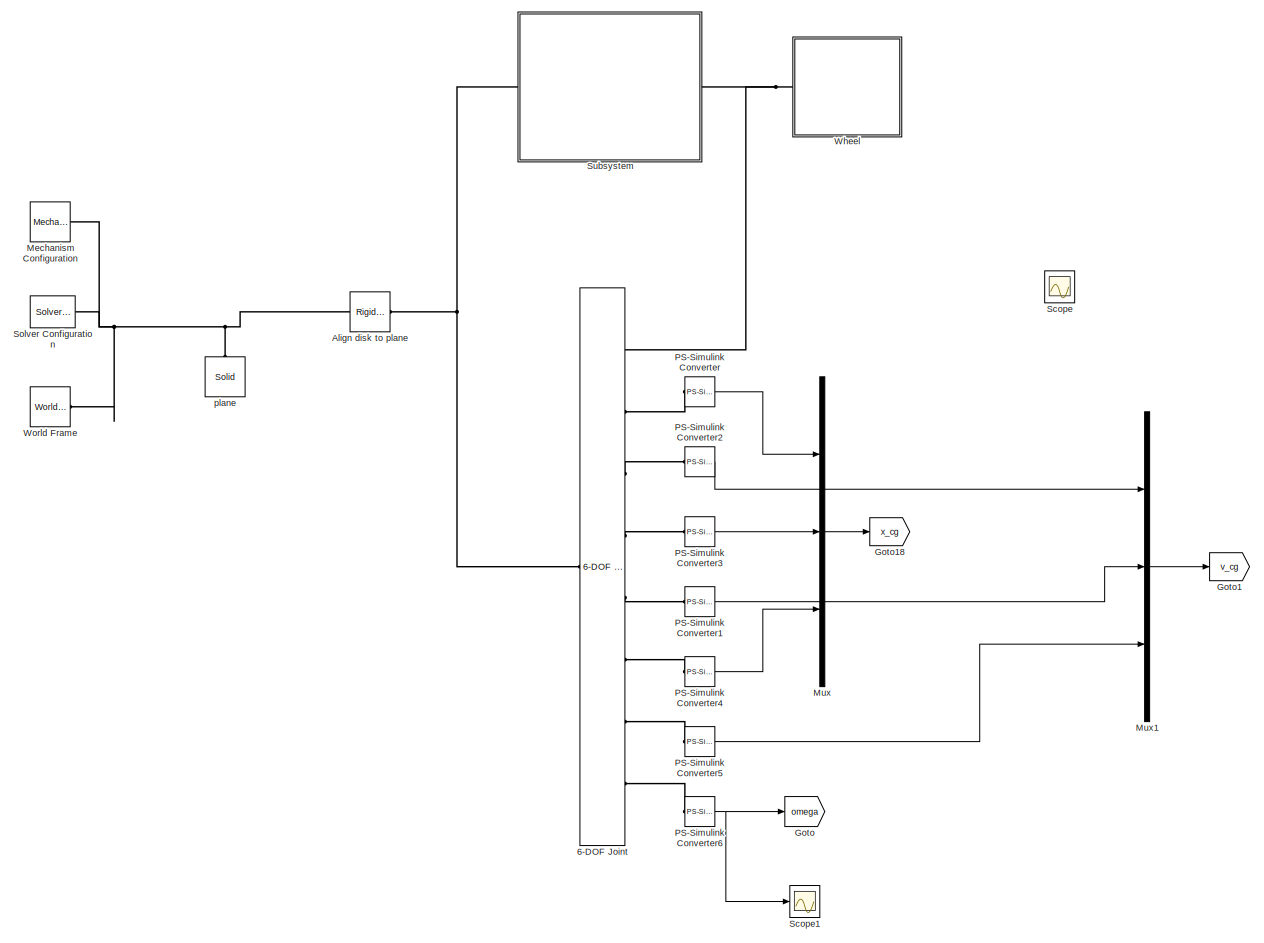
[diagram: root canvas - part 1/1, most of the canvas]
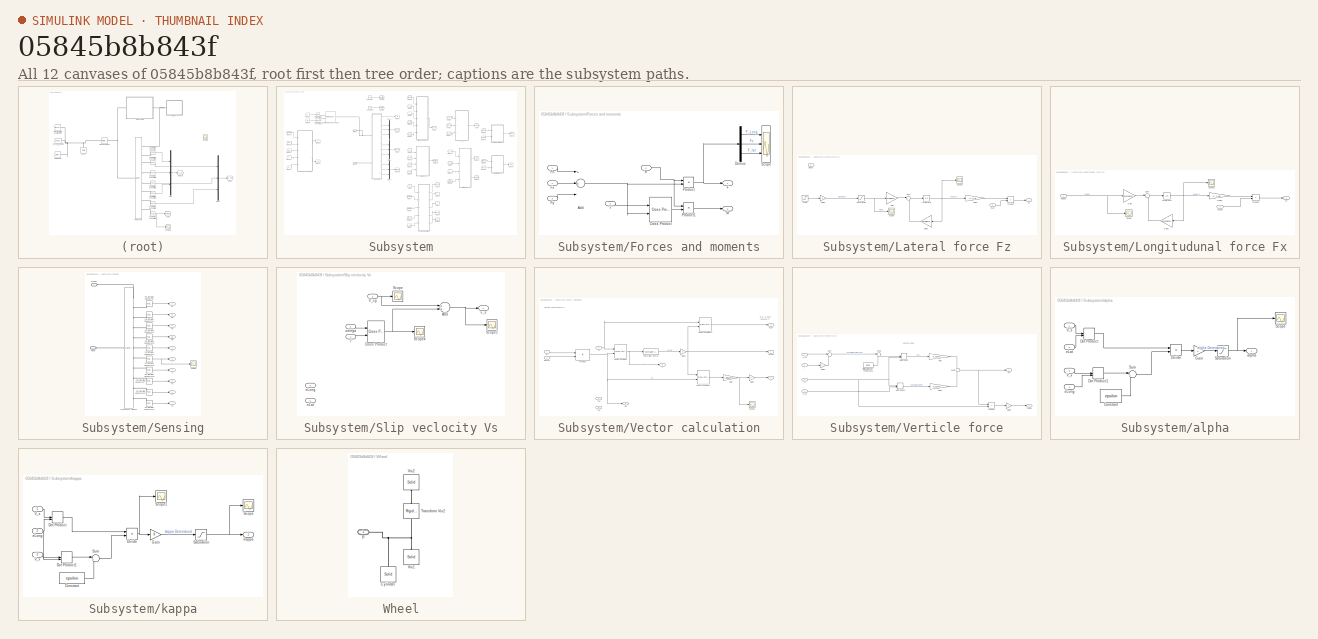
[diagram: thumbnail index - all 12 canvases of the model, root first then tree order]
MODEL slx_05845b8b843f
KIND model
CONFIG AbsTol = auto
CONFIG EnableMultiTasking = off
CONFIG FixedStep = auto
CONFIG MaxStep = auto
CONFIG MinStep = auto
CONFIG RelTol = 1e-3
CONFIG SampleTimeConstraint = Unconstrained
CONFIG Solver = VariableStepAuto
CONFIG SolverName = VariableStepAuto
CONFIG StartTime = 0.0
CONFIG StopTime = 10.0
BLOCK [Reference] 6-DOF Joint  REF=sm_lib/Joints/6-DOF Joint
  Ports = [0, 0, 0, 0, 0, 1, 8]
  SourceBlock = sm_lib/Joints/6-DOF Joint
  SourceProductBaseCode = MS
  SourceProductName = Simscape Multibody
  SourceType = 6-DOF Joint
BLOCK [Reference] Align disk to plane  REF=sm_lib/Frames and
Transforms/Rigid
Transform
  Ports = [0, 0, 0, 0, 0, 1, 1]
  SourceBlock = sm_lib/Frames and\nTransforms/Rigid\nTransform
  SourceProductBaseCode = MS
  SourceProductName = Simscape Multibody
  SourceType = Rigid\nTransform
BLOCK [Goto] Goto
  Commented = on
  GotoTag = omega
  TagVisibility = global
BLOCK [Goto] Goto1
  Commented = on
  GotoTag = v_cg
  TagVisibility = global
BLOCK [Goto] Goto18
  Commented = on
  GotoTag = x_cg
  TagVisibility = global
BLOCK [Reference] Mechanism Configuration  REF=sm_lib/Utilities/Mechanism
Configuration
  Ports = [0, 0, 0, 0, 0, 0, 1]
  SourceBlock = sm_lib/Utilities/Mechanism\nConfiguration
  SourceProductBaseCode = MS
  SourceProductName = Simscape Multibody
  SourceType = Mechanism\nConfiguration
BLOCK [Mux] Mux
  Commented = on
  DisplayOption = bar
  Inputs = 3
  Ports = [3, 1]
BLOCK [Mux] Mux1
  Commented = on
  DisplayOption = bar
  Inputs = 3
  Ports = [3, 1]
BLOCK [Reference] PS-Simulink Converter  REF=nesl_utility/PS-Simulink
Converter
  Ports = [0, 1, 0, 0, 0, 1]
  SourceBlock = nesl_utility/PS-Simulink\nConverter
  SourceProductBaseCode = SS
  SourceProductName = Simscape
  SourceType = PS-Simulink\nConverter
BLOCK [Reference] PS-Simulink Converter1  REF=nesl_utility/PS-Simulink
Converter
  Ports = [0, 1, 0, 0, 0, 1]
  SourceBlock = nesl_utility/PS-Simulink\nConverter
  SourceProductBaseCode = SS
  SourceProductName = Simscape
  SourceType = PS-Simulink\nConverter
BLOCK [Reference] PS-Simulink Converter2  REF=nesl_utility/PS-Simulink
Converter
  Ports = [0, 1, 0, 0, 0, 1]
  SourceBlock = nesl_utility/PS-Simulink\nConverter
  SourceProductBaseCode = SS
  SourceProductName = Simscape
  SourceType = PS-Simulink\nConverter
BLOCK [Reference] PS-Simulink Converter3  REF=nesl_utility/PS-Simulink
Converter
  Ports = [0, 1, 0, 0, 0, 1]
  SourceBlock = nesl_utility/PS-Simulink\nConverter
  SourceProductBaseCode = SS
  SourceProductName = Simscape
  SourceType = PS-Simulink\nConverter
BLOCK [Reference] PS-Simulink Converter4  REF=nesl_utility/PS-Simulink
Converter
  Ports = [0, 1, 0, 0, 0, 1]
  SourceBlock = nesl_utility/PS-Simulink\nConverter
  SourceProductBaseCode = SS
  SourceProductName = Simscape
  SourceType = PS-Simulink\nConverter
BLOCK [Reference] PS-Simulink Converter5  REF=nesl_utility/PS-Simulink
Converter
  Ports = [0, 1, 0, 0, 0, 1]
  SourceBlock = nesl_utility/PS-Simulink\nConverter
  SourceProductBaseCode = SS
  SourceProductName = Simscape
  SourceType = PS-Simulink\nConverter
BLOCK [Reference] PS-Simulink Converter6  REF=nesl_utility/PS-Simulink
Converter
  Ports = [0, 1, 0, 0, 0, 1]
  SourceBlock = nesl_utility/PS-Simulink\nConverter
  SourceProductBaseCode = SS
  SourceProductName = Simscape
  SourceType = PS-Simulink\nConverter
BLOCK [Scope] Scope
  Commented = on
  NumInputPorts = 1
  Ports = [1]
  ScopeSpecificationString = Simulink.scopes.TimeScopeBlockCfg('CurrentConfiguration', extmgr.ConfigurationSet(extmgr.Configuration('Core','General UI',true),extmgr.Configuration('Core','Source UI',true),extmgr.Configuration('Sources','WiredSimulink',true,'DataLoggingVariableName','ScopeData8'),extmgr.Configuration('Visuals','Time Domain',true,'SerializedDisplays',{struct('MinYLimReal','206.51836','MaxYLimReal','358.2605','YL...<+1422ch>
BLOCK [Scope] Scope1
  NumInputPorts = 1
  Ports = [1]
  ScopeSpecificationString = Simulink.scopes.TimeScopeBlockCfg('CurrentConfiguration', extmgr.ConfigurationSet(extmgr.Configuration('Core','General UI',true),extmgr.Configuration('Core','Source UI',true),extmgr.Configuration('Sources','WiredSimulink',true,'DataLoggingVariableName','ScopeData9'),extmgr.Configuration('Visuals','Time Domain',true,'SerializedDisplays',{struct('MinYLimReal','-21.02323','MaxYLimReal','22.5424','YLa...<+1494ch>
BLOCK [Reference] Solver Configuration  REF=nesl_utility/Solver
Configuration
  Ports = [0, 0, 0, 0, 0, 0, 1]
  SourceBlock = nesl_utility/Solver\nConfiguration
  SourceProductBaseCode = SS
  SourceProductName = Simscape
  SourceType = Solver\nConfiguration
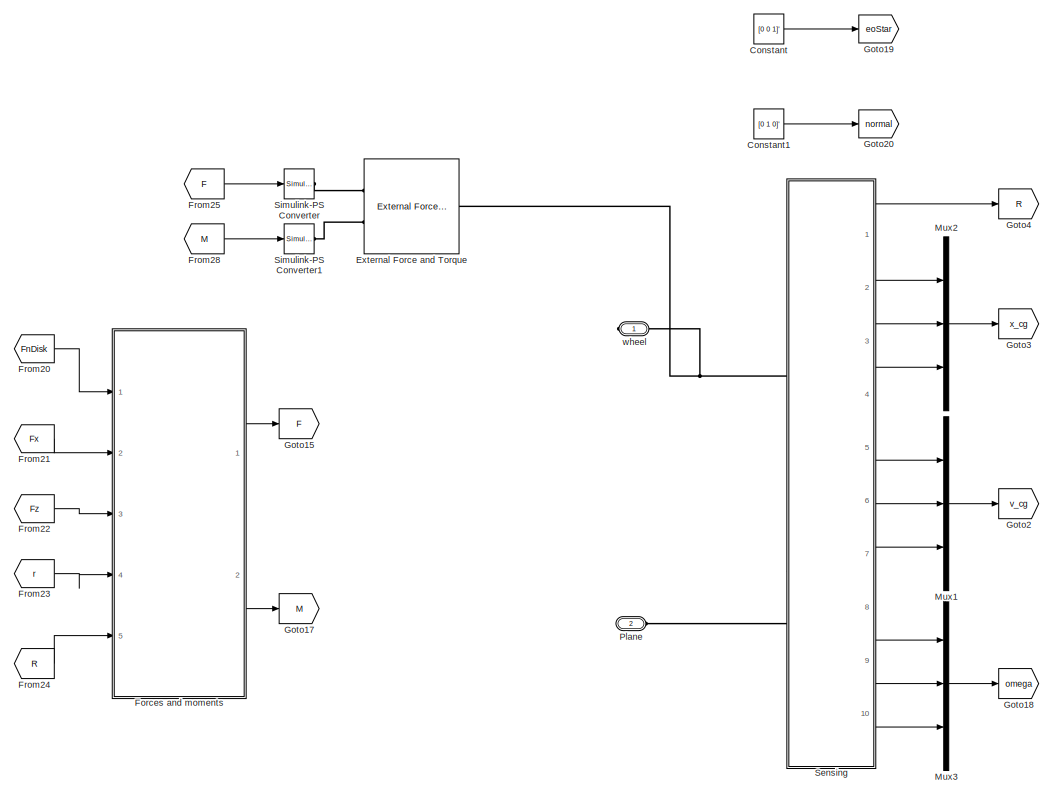
[diagram: Subsystem - part 1/3, top left region]
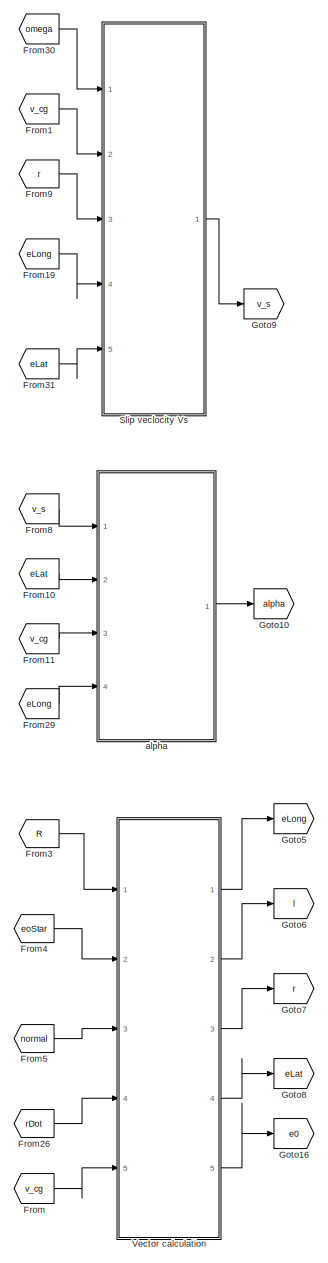
[diagram: Subsystem - part 2/3, center side, full height]
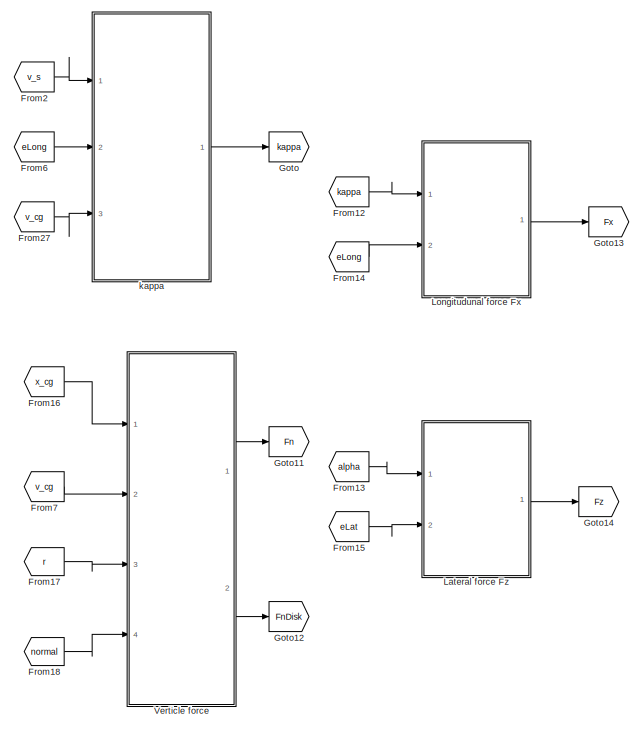
[diagram: Subsystem - part 3/3, middle right region]
BLOCK [SubSystem] Subsystem
  Ports = [0, 0, 0, 0, 0, 1, 1]
  RequestExecContextInheritance = off
  Variant = off
BLOCK [Constant] Subsystem/Constant
  Value = [0 0 1]'
BLOCK [Constant] Subsystem/Constant1
  Value = [0 1 0]'
BLOCK [Reference] Subsystem/External Force and Torque  REF=sm_lib/Forces and
Torques/External Force
and Torque
  Ports = [0, 0, 0, 0, 0, 2, 1]
  SourceBlock = sm_lib/Forces and\nTorques/External Force\nand Torque
  SourceProductBaseCode = MS
  SourceProductName = Simscape Multibody
  SourceType = External Force\nand Torque
BLOCK [SubSystem] Subsystem/Forces and moments
  Ports = [5, 2]
  RequestExecContextInheritance = off
  Variant = off
BLOCK [Sum] Subsystem/Forces and moments/Add
  InputSameDT = off
  Inputs = 3
  OutDataTypeStr = Inherit: Inherit via internal rule
  Ports = [3, 1]
  SaturateOnIntegerOverflow = off
BLOCK [Reference] Subsystem/Forces and moments/Cross Product  REF=vrlib/Utilities/Cross Product
  Ports = [2, 1]
  SourceBlock = vrlib/Utilities/Cross Product
  SourceProductBaseCode = VR
  SourceProductName = Simulink 3D Animation
  SourceType = Cross Product
BLOCK [Demux] Subsystem/Forces and moments/Demux
  DisplayOption = bar
  Outputs = 3
  Ports = [1, 3]
BLOCK [Outport] Subsystem/Forces and moments/F
  IconDisplay = Port number
BLOCK [Inport] Subsystem/Forces and moments/Fn
  IconDisplay = Port number
BLOCK [Inport] Subsystem/Forces and moments/Fx
  IconDisplay = Port number
  Port = 2
BLOCK [Inport] Subsystem/Forces and moments/Fy
  IconDisplay = Port number
  Port = 3
BLOCK [Outport] Subsystem/Forces and moments/M
  IconDisplay = Port number
  Port = 2
BLOCK [Product] Subsystem/Forces and moments/Product
  InputSameDT = off
  Inputs = /*
  Multiplication = Matrix(*)
  OutDataTypeStr = Inherit: Inherit via internal rule
  Ports = [2, 1]
  RndMeth = Floor
  SaturateOnIntegerOverflow = off
BLOCK [Product] Subsystem/Forces and moments/Product1
  InputSameDT = off
  Inputs = /*
  Multiplication = Matrix(*)
  OutDataTypeStr = Inherit: Inherit via internal rule
  Ports = [2, 1]
  RndMeth = Floor
  SaturateOnIntegerOverflow = off
BLOCK [Inport] Subsystem/Forces and moments/R
  IconDisplay = Port number
  Port = 5
BLOCK [Scope] Subsystem/Forces and moments/Scope
  NumInputPorts = 3
  Ports = [3]
  ScopeSpecificationString = Simulink.scopes.TimeScopeBlockCfg('CurrentConfiguration', extmgr.ConfigurationSet(extmgr.Configuration('Core','General UI',true),extmgr.Configuration('Core','Source UI',true),extmgr.Configuration('Sources','WiredSimulink',true,'DataLoggingVariableName','ScopeData1'),extmgr.Configuration('Visuals','Time Domain',true,'SerializedDisplays',{struct('MinYLimReal','-76.91031','MaxYLimReal','467.50793','Y...<+2761ch>
BLOCK [Inport] Subsystem/Forces and moments/r
  IconDisplay = Port number
  Port = 4
BLOCK [From] Subsystem/From
  GotoTag = v_cg
BLOCK [From] Subsystem/From1
  GotoTag = v_cg
BLOCK [From] Subsystem/From10
  GotoTag = eLat
BLOCK [From] Subsystem/From11
  GotoTag = v_cg
BLOCK [From] Subsystem/From12
  GotoTag = kappa
BLOCK [From] Subsystem/From13
  GotoTag = alpha
BLOCK [From] Subsystem/From14
  GotoTag = eLong
BLOCK [From] Subsystem/From15
  GotoTag = eLat
BLOCK [From] Subsystem/From16
  GotoTag = x_cg
BLOCK [From] Subsystem/From17
  GotoTag = r
BLOCK [From] Subsystem/From18
  GotoTag = normal
BLOCK [From] Subsystem/From19
  GotoTag = eLong
BLOCK [From] Subsystem/From2
  GotoTag = v_s
BLOCK [From] Subsystem/From20
  GotoTag = FnDisk
BLOCK [From] Subsystem/From21
  GotoTag = Fx
BLOCK [From] Subsystem/From22
  GotoTag = Fz
BLOCK [From] Subsystem/From23
  GotoTag = r
BLOCK [From] Subsystem/From24
  GotoTag = R
BLOCK [From] Subsystem/From25
  GotoTag = F
BLOCK [From] Subsystem/From26
  GotoTag = rDot
BLOCK [From] Subsystem/From27
  GotoTag = v_cg
BLOCK [From] Subsystem/From28
  GotoTag = M
BLOCK [From] Subsystem/From29
  GotoTag = eLong
BLOCK [From] Subsystem/From3
  GotoTag = R
BLOCK [From] Subsystem/From30
  GotoTag = omega
BLOCK [From] Subsystem/From31
  GotoTag = eLat
BLOCK [From] Subsystem/From4
  GotoTag = eoStar
BLOCK [From] Subsystem/From5
  GotoTag = normal
BLOCK [From] Subsystem/From6
  GotoTag = eLong
BLOCK [From] Subsystem/From7
  GotoTag = v_cg
BLOCK [From] Subsystem/From8
  GotoTag = v_s
BLOCK [From] Subsystem/From9
  GotoTag = r
BLOCK [Goto] Subsystem/Goto
  GotoTag = kappa
BLOCK [Goto] Subsystem/Goto10
  GotoTag = alpha
BLOCK [Goto] Subsystem/Goto11
  GotoTag = Fn
BLOCK [Goto] Subsystem/Goto12
  GotoTag = FnDisk
BLOCK [Goto] Subsystem/Goto13
  GotoTag = Fx
BLOCK [Goto] Subsystem/Goto14
  GotoTag = Fz
BLOCK [Goto] Subsystem/Goto15
  GotoTag = F
BLOCK [Goto] Subsystem/Goto16
  GotoTag = e0
BLOCK [Goto] Subsystem/Goto17
  GotoTag = M
BLOCK [Goto] Subsystem/Goto18
  GotoTag = omega
BLOCK [Goto] Subsystem/Goto19
  GotoTag = eoStar
BLOCK [Goto] Subsystem/Goto2
  GotoTag = v_cg
BLOCK [Goto] Subsystem/Goto20
  GotoTag = normal
BLOCK [Goto] Subsystem/Goto3
  GotoTag = x_cg
BLOCK [Goto] Subsystem/Goto4
  GotoTag = R
BLOCK [Goto] Subsystem/Goto5
  GotoTag = eLong
BLOCK [Goto] Subsystem/Goto6
  GotoTag = l
BLOCK [Goto] Subsystem/Goto7
  GotoTag = r
BLOCK [Goto] Subsystem/Goto8
  GotoTag = eLat
BLOCK [Goto] Subsystem/Goto9
  GotoTag = v_s
BLOCK [SubSystem] Subsystem/Lateral force Fz
  Ports = [2, 1]
  RequestExecContextInheritance = off
  Variant = off
BLOCK [Outport] Subsystem/Lateral force Fz/Fz
  IconDisplay = Port number
BLOCK [Gain] Subsystem/Lateral force Fz/Gain
  Gain = v0/sigma
  OutDataTypeStr = Inherit: Inherit via internal rule
  ParamDataTypeStr = Inherit: Inherit via internal rule
  SaturateOnIntegerOverflow = off
BLOCK [Gain] Subsystem/Lateral force Fz/Gain1
  Gain = v0/sigma
  OutDataTypeStr = Inherit: Inherit via internal rule
  ParamDataTypeStr = Inherit: Inherit via internal rule
  SaturateOnIntegerOverflow = off
BLOCK [Gain] Subsystem/Lateral force Fz/Gain2
  Gain = -C_F_alpha
  OutDataTypeStr = Inherit: Inherit via internal rule
  ParamDataTypeStr = Inherit: Inherit via internal rule
  SaturateOnIntegerOverflow = off
BLOCK [Gain] Subsystem/Lateral force Fz/Gain3
  Gain = 0
  OutDataTypeStr = Inherit: Inherit via internal rule
  ParamDataTypeStr = Inherit: Inherit via internal rule
  SaturateOnIntegerOverflow = off
BLOCK [Integrator] Subsystem/Lateral force Fz/Integrator
  Ports = [1, 1]
BLOCK [Product] Subsystem/Lateral force Fz/Product
  InputSameDT = off
  OutDataTypeStr = Inherit: Inherit via internal rule
  Ports = [2, 1]
  RndMeth = Floor
  SaturateOnIntegerOverflow = off
BLOCK [Saturate] Subsystem/Lateral force Fz/Saturation
  InputPortMap = u0
  LowerLimit = -1e0
  Ports = [1, 1]
  UpperLimit = 0
BLOCK [Scope] Subsystem/Lateral force Fz/Scope
  NumInputPorts = 1
  Ports = [1]
  ScopeSpecificationString = Simulink.scopes.TimeScopeBlockCfg('CurrentConfiguration', extmgr.ConfigurationSet(extmgr.Configuration('Core','General UI',true),extmgr.Configuration('Core','Source UI',true),extmgr.Configuration('Sources','WiredSimulink',true,'DataLoggingVariableName','ScopeData5'),extmgr.Configuration('Visuals','Time Domain',true,'SerializedDisplays',{struct('MinYLimReal','-1.00000','MaxYLimReal','1.00000','YLab...<+1420ch>
BLOCK [Scope] Subsystem/Lateral force Fz/Scope1
  NumInputPorts = 1
  Ports = [1]
  ScopeSpecificationString = Simulink.scopes.TimeScopeBlockCfg('CurrentConfiguration', extmgr.ConfigurationSet(extmgr.Configuration('Core','General UI',true),extmgr.Configuration('Core','Source UI',true),extmgr.Configuration('Sources','WiredSimulink',true,'DataLoggingVariableName','ScopeData7'),extmgr.Configuration('Visuals','Time Domain',true,'SerializedDisplays',{struct('MinYLimReal','-1.00000','MaxYLimReal','1.00000','YLab...<+1395ch>
BLOCK [Step] Subsystem/Lateral force Fz/Step
  SampleTime = 0
  Time = 0
BLOCK [Sum] Subsystem/Lateral force Fz/Sum
  IconShape = round
  InputSameDT = off
  Inputs = |+-
  OutDataTypeStr = Inherit: Inherit via internal rule
  Ports = [2, 1]
  SaturateOnIntegerOverflow = off
BLOCK [Inport] Subsystem/Lateral force Fz/alpha
  IconDisplay = Port number
BLOCK [Inport] Subsystem/Lateral force Fz/eLat
  IconDisplay = Port number
  Port = 2
BLOCK [SubSystem] Subsystem/Longitudunal force Fx
  Ports = [2, 1]
  RequestExecContextInheritance = off
  Variant = off
BLOCK [Outport] Subsystem/Longitudunal force Fx/Fx
  IconDisplay = Port number
BLOCK [Gain] Subsystem/Longitudunal force Fx/Gain
  Gain = v0/sigma
  OutDataTypeStr = Inherit: Inherit via internal rule
  ParamDataTypeStr = Inherit: Inherit via internal rule
  SaturateOnIntegerOverflow = off
BLOCK [Gain] Subsystem/Longitudunal force Fx/Gain1
  Gain = v0/sigma
  OutDataTypeStr = Inherit: Inherit via internal rule
  ParamDataTypeStr = Inherit: Inherit via internal rule
  SaturateOnIntegerOverflow = off
BLOCK [Gain] Subsystem/Longitudunal force Fx/Gain2
  Gain = -C_F_kappa
  OutDataTypeStr = Inherit: Inherit via internal rule
  ParamDataTypeStr = Inherit: Inherit via internal rule
  SaturateOnIntegerOverflow = off
BLOCK [Integrator] Subsystem/Longitudunal force Fx/Integrator
  Ports = [1, 1]
BLOCK [Product] Subsystem/Longitudunal force Fx/Product
  InputSameDT = off
  OutDataTypeStr = Inherit: Inherit via internal rule
  Ports = [2, 1]
  RndMeth = Floor
  SaturateOnIntegerOverflow = off
BLOCK [Scope] Subsystem/Longitudunal force Fx/Scope
  NumInputPorts = 1
  Ports = [1]
  ScopeSpecificationString = Simulink.scopes.TimeScopeBlockCfg('CurrentConfiguration', extmgr.ConfigurationSet(extmgr.Configuration('Core','General UI',true),extmgr.Configuration('Core','Source UI',true),extmgr.Configuration('Sources','WiredSimulink',true,'DataLoggingVariableName','ScopeData3'),extmgr.Configuration('Visuals','Time Domain',true,'SerializedDisplays',{struct('MinYLimReal','-1.125','MaxYLimReal','0.125','YLabelRe...<+1478ch>
BLOCK [Scope] Subsystem/Longitudunal force Fx/Scope1
  NumInputPorts = 1
  Ports = [1]
  ScopeSpecificationString = Simulink.scopes.TimeScopeBlockCfg('CurrentConfiguration', extmgr.ConfigurationSet(extmgr.Configuration('Core','General UI',true),extmgr.Configuration('Core','Source UI',true),extmgr.Configuration('Sources','WiredSimulink',true,'DataLoggingVariableName','ScopeData6'),extmgr.Configuration('Visuals','Time Domain',true,'SerializedDisplays',{struct('MinYLimReal','-0.47991','MaxYLimReal','0.05332','YLab...<+1493ch>
BLOCK [Sum] Subsystem/Longitudunal force Fx/Sum
  IconShape = round
  InputSameDT = off
  Inputs = |+-
  OutDataTypeStr = Inherit: Inherit via internal rule
  Ports = [2, 1]
  SaturateOnIntegerOverflow = off
BLOCK [Inport] Subsystem/Longitudunal force Fx/eLong
  IconDisplay = Port number
  Port = 2
BLOCK [Inport] Subsystem/Longitudunal force Fx/kappa
  IconDisplay = Port number
BLOCK [Mux] Subsystem/Mux1
  DisplayOption = bar
  Inputs = 3
  Ports = [3, 1]
BLOCK [Mux] Subsystem/Mux2
  DisplayOption = bar
  Inputs = 3
  Ports = [3, 1]
BLOCK [Mux] Subsystem/Mux3
  DisplayOption = bar
  Inputs = 3
  Ports = [3, 1]
BLOCK [PMIOPort] Subsystem/Plane
  Port = 2
  Side = Left
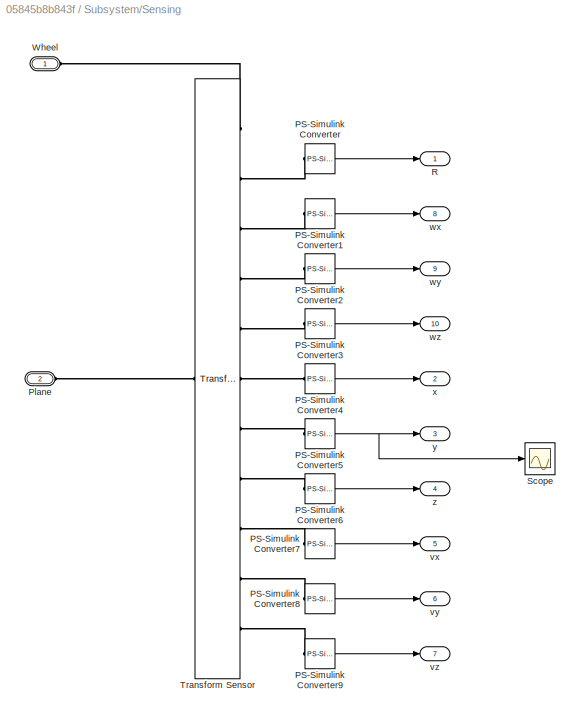
BLOCK [SubSystem] Subsystem/Sensing
  Ports = [0, 10, 0, 0, 0, 2]
  RequestExecContextInheritance = off
  Variant = off
BLOCK [Reference] Subsystem/Sensing/PS-Simulink Converter  REF=nesl_utility/PS-Simulink
Converter
  Ports = [0, 1, 0, 0, 0, 1]
  SourceBlock = nesl_utility/PS-Simulink\nConverter
  SourceProductBaseCode = SS
  SourceProductName = Simscape
  SourceType = PS-Simulink\nConverter
BLOCK [Reference] Subsystem/Sensing/PS-Simulink Converter1  REF=nesl_utility/PS-Simulink
Converter
  Ports = [0, 1, 0, 0, 0, 1]
  SourceBlock = nesl_utility/PS-Simulink\nConverter
  SourceProductBaseCode = SS
  SourceProductName = Simscape
  SourceType = PS-Simulink\nConverter
BLOCK [Reference] Subsystem/Sensing/PS-Simulink Converter2  REF=nesl_utility/PS-Simulink
Converter
  Ports = [0, 1, 0, 0, 0, 1]
  SourceBlock = nesl_utility/PS-Simulink\nConverter
  SourceProductBaseCode = SS
  SourceProductName = Simscape
  SourceType = PS-Simulink\nConverter
BLOCK [Reference] Subsystem/Sensing/PS-Simulink Converter3  REF=nesl_utility/PS-Simulink
Converter
  Ports = [0, 1, 0, 0, 0, 1]
  SourceBlock = nesl_utility/PS-Simulink\nConverter
  SourceProductBaseCode = SS
  SourceProductName = Simscape
  SourceType = PS-Simulink\nConverter
BLOCK [Reference] Subsystem/Sensing/PS-Simulink Converter4  REF=nesl_utility/PS-Simulink
Converter
  Ports = [0, 1, 0, 0, 0, 1]
  SourceBlock = nesl_utility/PS-Simulink\nConverter
  SourceProductBaseCode = SS
  SourceProductName = Simscape
  SourceType = PS-Simulink\nConverter
BLOCK [Reference] Subsystem/Sensing/PS-Simulink Converter5  REF=nesl_utility/PS-Simulink
Converter
  Ports = [0, 1, 0, 0, 0, 1]
  SourceBlock = nesl_utility/PS-Simulink\nConverter
  SourceProductBaseCode = SS
  SourceProductName = Simscape
  SourceType = PS-Simulink\nConverter
BLOCK [Reference] Subsystem/Sensing/PS-Simulink Converter6  REF=nesl_utility/PS-Simulink
Converter
  Ports = [0, 1, 0, 0, 0, 1]
  SourceBlock = nesl_utility/PS-Simulink\nConverter
  SourceProductBaseCode = SS
  SourceProductName = Simscape
  SourceType = PS-Simulink\nConverter
BLOCK [Reference] Subsystem/Sensing/PS-Simulink Converter7  REF=nesl_utility/PS-Simulink
Converter
  Ports = [0, 1, 0, 0, 0, 1]
  SourceBlock = nesl_utility/PS-Simulink\nConverter
  SourceProductBaseCode = SS
  SourceProductName = Simscape
  SourceType = PS-Simulink\nConverter
BLOCK [Reference] Subsystem/Sensing/PS-Simulink Converter8  REF=nesl_utility/PS-Simulink
Converter
  Ports = [0, 1, 0, 0, 0, 1]
  SourceBlock = nesl_utility/PS-Simulink\nConverter
  SourceProductBaseCode = SS
  SourceProductName = Simscape
  SourceType = PS-Simulink\nConverter
BLOCK [Reference] Subsystem/Sensing/PS-Simulink Converter9  REF=nesl_utility/PS-Simulink
Converter
  Ports = [0, 1, 0, 0, 0, 1]
  SourceBlock = nesl_utility/PS-Simulink\nConverter
  SourceProductBaseCode = SS
  SourceProductName = Simscape
  SourceType = PS-Simulink\nConverter
BLOCK [PMIOPort] Subsystem/Sensing/Plane
  Port = 2
  Side = Left
BLOCK [Outport] Subsystem/Sensing/R
  IconDisplay = Port number
BLOCK [Scope] Subsystem/Sensing/Scope
  NumInputPorts = 1
  Ports = [1]
  ScopeSpecificationString = Simulink.scopes.TimeScopeBlockCfg('CurrentConfiguration', extmgr.ConfigurationSet(extmgr.Configuration('Core','General UI',true),extmgr.Configuration('Core','Source UI',true),extmgr.Configuration('Sources','WiredSimulink',true,'DataLoggingVariableName','ScopeData7'),extmgr.Configuration('Visuals','Time Domain',true,'SerializedDisplays',{struct('MinYLimReal','0.29917','MaxYLimReal','0.30009','YLabe...<+1379ch>
BLOCK [Reference] Subsystem/Sensing/Transform Sensor  REF=sm_lib/Frames and
Transforms/Transform
Sensor
  Ports = [0, 0, 0, 0, 0, 1, 11]
  SourceBlock = sm_lib/Frames and\nTransforms/Transform\nSensor
  SourceProductBaseCode = MS
  SourceProductName = Simscape Multibody
  SourceType = Transform\nSensor
BLOCK [PMIOPort] Subsystem/Sensing/Wheel
  Port = 1
  Side = Left
BLOCK [Outport] Subsystem/Sensing/vx
  IconDisplay = Port number
  Port = 5
BLOCK [Outport] Subsystem/Sensing/vy
  IconDisplay = Port number
  Port = 6
BLOCK [Outport] Subsystem/Sensing/vz
  IconDisplay = Port number
  Port = 7
BLOCK [Outport] Subsystem/Sensing/wx
  IconDisplay = Port number
  Port = 8
BLOCK [Outport] Subsystem/Sensing/wy
  IconDisplay = Port number
  Port = 9
BLOCK [Outport] Subsystem/Sensing/wz
  IconDisplay = Port number
  Port = 10
BLOCK [Outport] Subsystem/Sensing/x
  IconDisplay = Port number
  Port = 2
BLOCK [Outport] Subsystem/Sensing/y
  IconDisplay = Port number
  Port = 3
BLOCK [Outport] Subsystem/Sensing/z
  IconDisplay = Port number
  Port = 4
BLOCK [Reference] Subsystem/Simulink-PS Converter  REF=nesl_utility/Simulink-PS
Converter
  Ports = [1, 0, 0, 0, 0, 0, 1]
  SourceBlock = nesl_utility/Simulink-PS\nConverter
  SourceProductBaseCode = SS
  SourceProductName = Simscape
  SourceType = Simulink-PS\nConverter
BLOCK [Reference] Subsystem/Simulink-PS Converter1  REF=nesl_utility/Simulink-PS
Converter
  Ports = [1, 0, 0, 0, 0, 0, 1]
  SourceBlock = nesl_utility/Simulink-PS\nConverter
  SourceProductBaseCode = SS
  SourceProductName = Simscape
  SourceType = Simulink-PS\nConverter
BLOCK [SubSystem] Subsystem/Slip veclocity Vs
  Ports = [5, 1]
  RequestExecContextInheritance = off
  Variant = off
BLOCK [Sum] Subsystem/Slip veclocity Vs/Add
  InputSameDT = off
  OutDataTypeStr = Inherit: Inherit via internal rule
  Ports = [2, 1]
  SaturateOnIntegerOverflow = off
BLOCK [Reference] Subsystem/Slip veclocity Vs/Cross Product  REF=vrlib/Utilities/Cross Product
  Ports = [2, 1]
  SourceBlock = vrlib/Utilities/Cross Product
  SourceProductBaseCode = VR
  SourceProductName = Simulink 3D Animation
  SourceType = Cross Product
BLOCK [Scope] Subsystem/Slip veclocity Vs/Scope
  NumInputPorts = 1
  Ports = [1]
  ScopeSpecificationString = Simulink.scopes.TimeScopeBlockCfg('CurrentConfiguration', extmgr.ConfigurationSet(extmgr.Configuration('Core','General UI',true),extmgr.Configuration('Core','Source UI',true),extmgr.Configuration('Sources','WiredSimulink',true,'DataLoggingVariableName','ScopeData10'),extmgr.Configuration('Visuals','Time Domain',true,'SerializedDisplays',{struct('MinYLimReal','-0.93661','MaxYLimReal','7.84907','YLa...<+1413ch>
BLOCK [Scope] Subsystem/Slip veclocity Vs/Scope1
  NumInputPorts = 1
  Ports = [1]
  ScopeSpecificationString = Simulink.scopes.TimeScopeBlockCfg('CurrentConfiguration', extmgr.ConfigurationSet(extmgr.Configuration('Core','General UI',true),extmgr.Configuration('Core','Source UI',true),extmgr.Configuration('Sources','WiredSimulink',true,'DataLoggingVariableName','ScopeData11'),extmgr.Configuration('Visuals','Time Domain',true,'SerializedDisplays',{struct('MinYLimReal','-7.17828','MaxYLimReal','14.60453','YL...<+1440ch>
BLOCK [Scope] Subsystem/Slip veclocity Vs/Scope4
  NumInputPorts = 1
  Ports = [1]
  ScopeSpecificationString = Simulink.scopes.TimeScopeBlockCfg('CurrentConfiguration', extmgr.ConfigurationSet(extmgr.Configuration('Core','General UI',true),extmgr.Configuration('Core','Source UI',true),extmgr.Configuration('Sources','WiredSimulink',true,'DataLoggingVariableName','ScopeData12'),extmgr.Configuration('Visuals','Time Domain',true,'SerializedDisplays',{struct('MinYLimReal','-0.625','MaxYLimReal','5.625','YLabelR...<+1500ch>
BLOCK [Inport] Subsystem/Slip veclocity Vs/V_cg
  IconDisplay = Port number
  Port = 2
BLOCK [Inport] Subsystem/Slip veclocity Vs/eLat
  IconDisplay = Port number
  Port = 5
BLOCK [Inport] Subsystem/Slip veclocity Vs/eLong
  IconDisplay = Port number
  Port = 4
BLOCK [Inport] Subsystem/Slip veclocity Vs/omega
  IconDisplay = Port number
BLOCK [Inport] Subsystem/Slip veclocity Vs/r
  IconDisplay = Port number
  Port = 3
BLOCK [Outport] Subsystem/Slip veclocity Vs/v_s
  IconDisplay = Port number
BLOCK [SubSystem] Subsystem/Vector calculation
  Ports = [5, 5]
  RequestExecContextInheritance = off
  Variant = off
BLOCK [Reference] Subsystem/Vector calculation/Cross Product  REF=vrlib/Utilities/Cross Product
  Ports = [2, 1]
  SourceBlock = vrlib/Utilities/Cross Product
  SourceProductBaseCode = VR
  SourceProductName = Simulink 3D Animation
  SourceType = Cross Product
BLOCK [Reference] Subsystem/Vector calculation/Cross Product1  REF=vrlib/Utilities/Cross Product
  Ports = [2, 1]
  SourceBlock = vrlib/Utilities/Cross Product
  SourceProductBaseCode = VR
  SourceProductName = Simulink 3D Animation
  SourceType = Cross Product
BLOCK [Reference] Subsystem/Vector calculation/Cross Product2  REF=vrlib/Utilities/Cross Product
  Ports = [2, 1]
  SourceBlock = vrlib/Utilities/Cross Product
  SourceProductBaseCode = VR
  SourceProductName = Simulink 3D Animation
  SourceType = Cross Product
BLOCK [Gain] Subsystem/Vector calculation/Gain
  Gain = radiusRW
  OutDataTypeStr = Inherit: Inherit via internal rule
  ParamDataTypeStr = Inherit: Inherit via internal rule
  SaturateOnIntegerOverflow = off
BLOCK [Gain] Subsystem/Vector calculation/Gain1
  Commented = through
  Gain = -1
  OutDataTypeStr = Inherit: Inherit via internal rule
  ParamDataTypeStr = Inherit: Inherit via internal rule
  SaturateOnIntegerOverflow = off
BLOCK [Gain] Subsystem/Vector calculation/Gain2
  OutDataTypeStr = Inherit: Inherit via internal rule
  ParamDataTypeStr = Inherit: Inherit via internal rule
  SaturateOnIntegerOverflow = off
BLOCK [Inport] Subsystem/Vector calculation/In4
  IconDisplay = Port number
  Port = 4
BLOCK [Inport] Subsystem/Vector calculation/In5
  IconDisplay = Port number
  Port = 5
BLOCK [Reference] Subsystem/Vector calculation/Normalize Vector  REF=vrlib/Utilities/Normalize Vector
  Ports = [1, 1]
  SourceBlock = vrlib/Utilities/Normalize Vector
  SourceProductBaseCode = VR
  SourceProductName = Simulink 3D Animation
  SourceType = Normalize Vector
BLOCK [Product] Subsystem/Vector calculation/Product
  InputSameDT = off
  Multiplication = Matrix(*)
  OutDataTypeStr = Inherit: Inherit via internal rule
  Ports = [2, 1]
  RndMeth = Floor
  SaturateOnIntegerOverflow = off
BLOCK [Inport] Subsystem/Vector calculation/R
  IconDisplay = Port number
BLOCK [Scope] Subsystem/Vector calculation/Scope1
  NumInputPorts = 1
  Ports = [1]
  ScopeSpecificationString = Simulink.scopes.TimeScopeBlockCfg('CurrentConfiguration', extmgr.ConfigurationSet(extmgr.Configuration('Core','General UI',true),extmgr.Configuration('Core','Source UI',true),extmgr.Configuration('Sources','WiredSimulink',true,'DataLoggingVariableName','ScopeData10'),extmgr.Configuration('Visuals','Time Domain',true,'SerializedDisplays',{struct('MinYLimReal','-0.3375','MaxYLimReal','0.0375','YLabe...<+1378ch>
BLOCK [Outport] Subsystem/Vector calculation/e0
  IconDisplay = Port number
  Port = 5
BLOCK [Inport] Subsystem/Vector calculation/e0star
  IconDisplay = Port number
  Port = 2
BLOCK [Outport] Subsystem/Vector calculation/eLat
  IconDisplay = Port number
  Port = 4
BLOCK [Outport] Subsystem/Vector calculation/eLong
  IconDisplay = Port number
BLOCK [Outport] Subsystem/Vector calculation/l
  IconDisplay = Port number
  Port = 2
BLOCK [Inport] Subsystem/Vector calculation/n
  IconDisplay = Port number
  Port = 3
BLOCK [Outport] Subsystem/Vector calculation/r
  IconDisplay = Port number
  Port = 3
BLOCK [SubSystem] Subsystem/Verticle force
  Ports = [4, 2]
  RequestExecContextInheritance = off
  Variant = off
BLOCK [DotProduct] Subsystem/Verticle force/Dot Product
  OutDataTypeStr = Inherit: Inherit via internal rule
BLOCK [DotProduct] Subsystem/Verticle force/Dot Product1
  OutDataTypeStr = Inherit: Inherit via internal rule
BLOCK [Outport] Subsystem/Verticle force/Fn
  IconDisplay = Port number
BLOCK [Outport] Subsystem/Verticle force/FnDisk
  IconDisplay = Port number
  Port = 2
BLOCK [Gain] Subsystem/Verticle force/Gain
  Gain = k_contact_RW
  OutDataTypeStr = Inherit: Inherit via internal rule
  ParamDataTypeStr = Inherit: Inherit via internal rule
  SaturateOnIntegerOverflow = off
BLOCK [Gain] Subsystem/Verticle force/Gain1
  Gain = b_contact_RW
  OutDataTypeStr = Inherit: Inherit via internal rule
  ParamDataTypeStr = Inherit: Inherit via internal rule
  SaturateOnIntegerOverflow = off
BLOCK [Gain] Subsystem/Verticle force/Gain2
  Gain = -1
  OutDataTypeStr = Inherit: Inherit via internal rule
  ParamDataTypeStr = Inherit: Inherit via internal rule
  SaturateOnIntegerOverflow = off
BLOCK [Gain] Subsystem/Verticle force/Gain3
  OutDataTypeStr = Inherit: Inherit via internal rule
  ParamDataTypeStr = Inherit: Inherit via internal rule
  SaturateOnIntegerOverflow = off
BLOCK [Constant] Subsystem/Verticle force/Initial position of CP from ground
  Value = [0 0 0]'
BLOCK [Product] Subsystem/Verticle force/Product
  InputSameDT = off
  OutDataTypeStr = Inherit: Inherit via internal rule
  Ports = [2, 1]
  RndMeth = Floor
  SaturateOnIntegerOverflow = off
BLOCK [Sum] Subsystem/Verticle force/Sum
  IconShape = round
  InputSameDT = off
  Inputs = |++
  OutDataTypeStr = Inherit: Inherit via internal rule
  Ports = [2, 1]
  SaturateOnIntegerOverflow = off
BLOCK [Sum] Subsystem/Verticle force/Sum1
  IconShape = round
  InputSameDT = off
  Inputs = |+-
  OutDataTypeStr = Inherit: Inherit via internal rule
  Ports = [2, 1]
  SaturateOnIntegerOverflow = off
BLOCK [Sum] Subsystem/Verticle force/Sum2
  IconShape = round
  InputSameDT = off
  OutDataTypeStr = Inherit: Inherit via internal rule
  Ports = [2, 1]
  SaturateOnIntegerOverflow = off
BLOCK [Inport] Subsystem/Verticle force/n
  IconDisplay = Port number
  Port = 4
BLOCK [Inport] Subsystem/Verticle force/r
  IconDisplay = Port number
  Port = 3
BLOCK [Inport] Subsystem/Verticle force/v_cg
  IconDisplay = Port number
  Port = 2
BLOCK [Inport] Subsystem/Verticle force/x_cg
  IconDisplay = Port number
BLOCK [SubSystem] Subsystem/alpha
  Ports = [4, 1]
  RequestExecContextInheritance = off
  Variant = off
BLOCK [Constant] Subsystem/alpha/Constant
  Value = epsilon
BLOCK [Product] Subsystem/alpha/Divide
  InputSameDT = off
  Inputs = */
  OutDataTypeStr = Inherit: Inherit via internal rule
  Ports = [2, 1]
  RndMeth = Floor
  SaturateOnIntegerOverflow = off
BLOCK [DotProduct] Subsystem/alpha/Dot Product
  OutDataTypeStr = Inherit: Inherit via internal rule
BLOCK [DotProduct] Subsystem/alpha/Dot Product1
  OutDataTypeStr = Inherit: Inherit via internal rule
BLOCK [Gain] Subsystem/alpha/Gain
  OutDataTypeStr = Inherit: Inherit via internal rule
  ParamDataTypeStr = Inherit: Inherit via internal rule
  SaturateOnIntegerOverflow = off
BLOCK [Saturate] Subsystem/alpha/Saturation
  InputPortMap = u0
  LowerLimit = -1e0
  Ports = [1, 1]
  UpperLimit = 0
BLOCK [Scope] Subsystem/alpha/Scope
  NumInputPorts = 1
  Ports = [1]
  ScopeSpecificationString = Simulink.scopes.TimeScopeBlockCfg('CurrentConfiguration', extmgr.ConfigurationSet(extmgr.Configuration('Core','General UI',true),extmgr.Configuration('Core','Source UI',true),extmgr.Configuration('Sources','WiredSimulink',true,'DataLoggingVariableName','ScopeData4'),extmgr.Configuration('Visuals','Time Domain',true,'SerializedDisplays',{struct('MinYLimReal','-0.06675','MaxYLimReal','0.00742','YLab...<+1496ch>
BLOCK [Sum] Subsystem/alpha/Sum
  IconShape = round
  InputSameDT = off
  Inputs = |++
  OutDataTypeStr = Inherit: Inherit via internal rule
  Ports = [2, 1]
  SaturateOnIntegerOverflow = off
BLOCK [Inport] Subsystem/alpha/V_s
  IconDisplay = Port number
BLOCK [Inport] Subsystem/alpha/V_x
  IconDisplay = Port number
  Port = 3
BLOCK [Outport] Subsystem/alpha/alpha
  IconDisplay = Port number
BLOCK [Inport] Subsystem/alpha/eLat
  IconDisplay = Port number
  Port = 2
BLOCK [Inport] Subsystem/alpha/eLong
  IconDisplay = Port number
  Port = 4
BLOCK [SubSystem] Subsystem/kappa
  Ports = [3, 1]
  RequestExecContextInheritance = off
  Variant = off
BLOCK [Constant] Subsystem/kappa/Constant
  Value = epsilon
BLOCK [Product] Subsystem/kappa/Divide
  InputSameDT = off
  Inputs = */
  OutDataTypeStr = Inherit: Inherit via internal rule
  Ports = [2, 1]
  RndMeth = Floor
  SaturateOnIntegerOverflow = off
BLOCK [DotProduct] Subsystem/kappa/Dot Product
  OutDataTypeStr = Inherit: Inherit via internal rule
BLOCK [DotProduct] Subsystem/kappa/Dot Product1
  OutDataTypeStr = Inherit: Inherit via internal rule
BLOCK [Gain] Subsystem/kappa/Gain
  OutDataTypeStr = Inherit: Inherit via internal rule
  ParamDataTypeStr = Inherit: Inherit via internal rule
  SaturateOnIntegerOverflow = off
BLOCK [Saturate] Subsystem/kappa/Saturation
  InputPortMap = u0
  LowerLimit = -1e0
  Ports = [1, 1]
  UpperLimit = 0
BLOCK [Scope] Subsystem/kappa/Scope
  NumInputPorts = 1
  Ports = [1]
  ScopeSpecificationString = Simulink.scopes.TimeScopeBlockCfg('CurrentConfiguration', extmgr.ConfigurationSet(extmgr.Configuration('Core','General UI',true),extmgr.Configuration('Core','Source UI',true),extmgr.Configuration('Sources','WiredSimulink',true,'DataLoggingVariableName','ScopeData2'),extmgr.Configuration('Visuals','Time Domain',true,'SerializedDisplays',{struct('MinYLimReal','-1.00000','MaxYLimReal','1.00000','YLab...<+1470ch>
BLOCK [Scope] Subsystem/kappa/Scope1
  NumInputPorts = 1
  Ports = [1]
  ScopeSpecificationString = Simulink.scopes.TimeScopeBlockCfg('CurrentConfiguration', extmgr.ConfigurationSet(extmgr.Configuration('Core','General UI',true),extmgr.Configuration('Core','Source UI',true),extmgr.Configuration('Sources','WiredSimulink',true,'DataLoggingVariableName','ScopeData12'),extmgr.Configuration('Visuals','Time Domain',true,'SerializedDisplays',{struct('MinYLimReal','-500.000066','MaxYLimReal','-499.99999...<+1490ch>
BLOCK [Sum] Subsystem/kappa/Sum
  IconShape = round
  InputSameDT = off
  Inputs = |++
  OutDataTypeStr = Inherit: Inherit via internal rule
  Ports = [2, 1]
  SaturateOnIntegerOverflow = off
BLOCK [Inport] Subsystem/kappa/V_s
  IconDisplay = Port number
BLOCK [Inport] Subsystem/kappa/V_x
  IconDisplay = Port number
  Port = 3
BLOCK [Inport] Subsystem/kappa/eLong
  IconDisplay = Port number
  Port = 2
BLOCK [Outport] Subsystem/kappa/kappa
  IconDisplay = Port number
BLOCK [PMIOPort] Subsystem/wheel
  Port = 1
  Side = Right
BLOCK [SubSystem] Wheel
  AncestorBlock = Parts_Lib/Cylinder
  Ports = [0, 0, 0, 0, 0, 1]
  RequestExecContextInheritance = off
  Tag = CustomStyle
  Variant = off
BLOCK [Reference] Wheel/Cylinder  REF=sm_lib/Body Elements/Solid
  Ports = [0, 0, 0, 0, 0, 0, 1]
  SourceBlock = sm_lib/Body Elements/Solid
  SourceProductBaseCode = MS
  SourceProductName = Simscape Multibody
  SourceType = Solid
BLOCK [PMIOPort] Wheel/R
  Port = 1
  Side = Left
BLOCK [Reference] Wheel/Transform Vis2  REF=sm_lib/Frames and
Transforms/Rigid
Transform
  Ports = [0, 0, 0, 0, 0, 1, 1]
  SourceBlock = sm_lib/Frames and\nTransforms/Rigid\nTransform
  SourceProductBaseCode = MS
  SourceProductName = Simscape Multibody
  SourceType = Rigid\nTransform
BLOCK [Reference] Wheel/Vis1  REF=sm_lib/Body Elements/Solid
  Ports = [0, 0, 0, 0, 0, 0, 1]
  SourceBlock = sm_lib/Body Elements/Solid
  SourceProductBaseCode = MS
  SourceProductName = Simscape Multibody
  SourceType = Solid
BLOCK [Reference] Wheel/Vis2  REF=sm_lib/Body Elements/Solid
  Ports = [0, 0, 0, 0, 0, 0, 1]
  SourceBlock = sm_lib/Body Elements/Solid
  SourceProductBaseCode = MS
  SourceProductName = Simscape Multibody
  SourceType = Solid
BLOCK [Reference] World Frame  REF=sm_lib/Frames and
Transforms/World Frame
  Ports = [0, 0, 0, 0, 0, 0, 1]
  SourceBlock = sm_lib/Frames and\nTransforms/World Frame
  SourceProductBaseCode = MS
  SourceProductName = Simscape Multibody
  SourceType = World Frame
BLOCK [Reference] plane  REF=sm_lib/Body Elements/Solid
  Ports = [0, 0, 0, 0, 0, 0, 1]
  SourceBlock = sm_lib/Body Elements/Solid
  SourceProductBaseCode = MS
  SourceProductName = Simscape Multibody
  SourceType = Solid
ANNOTATION Subsystem/Vector calculation: Defining wheel geometry
ANNOTATION Subsystem/Vector calculation: eLat is along negative Z
ANNOTATION Subsystem/Verticle force: Linear force law
LINE Mux1:1 -> Goto1:1
LINE Mux:1 -> Goto18:1
LINE PS-Simulink Converter1:1 -> Mux1:2
LINE PS-Simulink Converter2:1 -> Mux1:1
LINE PS-Simulink Converter3:1 -> Mux:2
LINE PS-Simulink Converter4:1 -> Mux:3
LINE PS-Simulink Converter5:1 -> Mux1:3
NET PS-Simulink Converter6:1 -> Goto:1, Scope1:1
LINE PS-Simulink Converter:1 -> Mux:1
LINE Subsystem/Constant1:1 -> Subsystem/Goto20:1
LINE Subsystem/Constant:1 -> Subsystem/Goto19:1
NET Subsystem/Forces and moments/Add:1 -> Subsystem/Forces and moments/Cross Product:2, Subsystem/Forces and moments/Product:2
LINE Subsystem/Forces and moments/Cross Product:1 -> Subsystem/Forces and moments/Product1:2
LINE Subsystem/Forces and moments/Demux:1 -> Subsystem/Forces and moments/Scope:1
LINE Subsystem/Forces and moments/Demux:2 -> Subsystem/Forces and moments/Scope:2
LINE Subsystem/Forces and moments/Demux:3 -> Subsystem/Forces and moments/Scope:3
LINE Subsystem/Forces and moments/Fn:1 -> Subsystem/Forces and moments/Add:1
LINE Subsystem/Forces and moments/Fx:1 -> Subsystem/Forces and moments/Add:2
LINE Subsystem/Forces and moments/Fy:1 -> Subsystem/Forces and moments/Add:3
LINE Subsystem/Forces and moments/Product1:1 -> Subsystem/Forces and moments/M:1
NET Subsystem/Forces and moments/Product:1 -> Subsystem/Forces and moments/Demux:1, Subsystem/Forces and moments/F:1
NET Subsystem/Forces and moments/R:1 -> Subsystem/Forces and moments/Product1:1, Subsystem/Forces and moments/Product:1
LINE Subsystem/Forces and moments/r:1 -> Subsystem/Forces and moments/Cross Product:1
LINE Subsystem/Forces and moments:1 -> Subsystem/Goto15:1
LINE Subsystem/Forces and moments:2 -> Subsystem/Goto17:1
LINE Subsystem/From10:1 -> Subsystem/alpha:2
LINE Subsystem/From11:1 -> Subsystem/alpha:3
LINE Subsystem/From12:1 -> Subsystem/Longitudunal force Fx:1
LINE Subsystem/From13:1 -> Subsystem/Lateral force Fz:1
LINE Subsystem/From14:1 -> Subsystem/Longitudunal force Fx:2
LINE Subsystem/From15:1 -> Subsystem/Lateral force Fz:2
LINE Subsystem/From16:1 -> Subsystem/Verticle force:1
LINE Subsystem/From17:1 -> Subsystem/Verticle force:3
LINE Subsystem/From18:1 -> Subsystem/Verticle force:4
LINE Subsystem/From19:1 -> Subsystem/Slip veclocity Vs:4
LINE Subsystem/From1:1 -> Subsystem/Slip veclocity Vs:2
LINE Subsystem/From20:1 -> Subsystem/Forces and moments:1
LINE Subsystem/From21:1 -> Subsystem/Forces and moments:2
LINE Subsystem/From22:1 -> Subsystem/Forces and moments:3
LINE Subsystem/From23:1 -> Subsystem/Forces and moments:4
LINE Subsystem/From24:1 -> Subsystem/Forces and moments:5
LINE Subsystem/From25:1 -> Subsystem/Simulink-PS Converter:1
LINE Subsystem/From26:1 -> Subsystem/Vector calculation:4
LINE Subsystem/From27:1 -> Subsystem/kappa:3
LINE Subsystem/From28:1 -> Subsystem/Simulink-PS Converter1:1
LINE Subsystem/From29:1 -> Subsystem/alpha:4
LINE Subsystem/From2:1 -> Subsystem/kappa:1
LINE Subsystem/From30:1 -> Subsystem/Slip veclocity Vs:1
LINE Subsystem/From31:1 -> Subsystem/Slip veclocity Vs:5
LINE Subsystem/From3:1 -> Subsystem/Vector calculation:1
LINE Subsystem/From4:1 -> Subsystem/Vector calculation:2
LINE Subsystem/From5:1 -> Subsystem/Vector calculation:3
LINE Subsystem/From6:1 -> Subsystem/kappa:2
LINE Subsystem/From7:1 -> Subsystem/Verticle force:2
LINE Subsystem/From8:1 -> Subsystem/alpha:1
LINE Subsystem/From9:1 -> Subsystem/Slip veclocity Vs:3
LINE Subsystem/From:1 -> Subsystem/Vector calculation:5
LINE Subsystem/Lateral force Fz/Gain1:1 -> Subsystem/Lateral force Fz/Sum:2
LINE Subsystem/Lateral force Fz/Gain2:1 -> Subsystem/Lateral force Fz/Product:1
LINE Subsystem/Lateral force Fz/Gain3:1 -> Subsystem/Lateral force Fz/Saturation:1
LINE Subsystem/Lateral force Fz/Gain:1 -> Subsystem/Lateral force Fz/Sum:1
NET Subsystem/Lateral force Fz/Integrator:1 -> Subsystem/Lateral force Fz/Gain1:1, Subsystem/Lateral force Fz/Gain2:1, Subsystem/Lateral force Fz/Scope1:1
LINE Subsystem/Lateral force Fz/Product:1 -> Subsystem/Lateral force Fz/Fz:1
NET Subsystem/Lateral force Fz/Saturation:1 -> Subsystem/Lateral force Fz/Gain:1, Subsystem/Lateral force Fz/Scope:1
LINE Subsystem/Lateral force Fz/Step:1 -> Subsystem/Lateral force Fz/Gain3:1
LINE Subsystem/Lateral force Fz/Sum:1 -> Subsystem/Lateral force Fz/Integrator:1
LINE Subsystem/Lateral force Fz/eLat:1 -> Subsystem/Lateral force Fz/Product:2
LINE Subsystem/Lateral force Fz:1 -> Subsystem/Goto14:1
LINE Subsystem/Longitudunal force Fx/Gain1:1 -> Subsystem/Longitudunal force Fx/Sum:2
LINE Subsystem/Longitudunal force Fx/Gain2:1 -> Subsystem/Longitudunal force Fx/Product:1
LINE Subsystem/Longitudunal force Fx/Gain:1 -> Subsystem/Longitudunal force Fx/Sum:1
NET Subsystem/Longitudunal force Fx/Integrator:1 -> Subsystem/Longitudunal force Fx/Gain1:1, Subsystem/Longitudunal force Fx/Gain2:1, Subsystem/Longitudunal force Fx/Scope1:1
LINE Subsystem/Longitudunal force Fx/Product:1 -> Subsystem/Longitudunal force Fx/Fx:1
LINE Subsystem/Longitudunal force Fx/Sum:1 -> Subsystem/Longitudunal force Fx/Integrator:1
LINE Subsystem/Longitudunal force Fx/eLong:1 -> Subsystem/Longitudunal force Fx/Product:2
NET Subsystem/Longitudunal force Fx/kappa:1 -> Subsystem/Longitudunal force Fx/Gain:1, Subsystem/Longitudunal force Fx/Scope:1
LINE Subsystem/Longitudunal force Fx:1 -> Subsystem/Goto13:1
LINE Subsystem/Mux1:1 -> Subsystem/Goto2:1
LINE Subsystem/Mux2:1 -> Subsystem/Goto3:1
LINE Subsystem/Mux3:1 -> Subsystem/Goto18:1
LINE Subsystem/Sensing/PS-Simulink Converter1:1 -> Subsystem/Sensing/wx:1
LINE Subsystem/Sensing/PS-Simulink Converter2:1 -> Subsystem/Sensing/wy:1
LINE Subsystem/Sensing/PS-Simulink Converter3:1 -> Subsystem/Sensing/wz:1
LINE Subsystem/Sensing/PS-Simulink Converter4:1 -> Subsystem/Sensing/x:1
NET Subsystem/Sensing/PS-Simulink Converter5:1 -> Subsystem/Sensing/Scope:1, Subsystem/Sensing/y:1
LINE Subsystem/Sensing/PS-Simulink Converter6:1 -> Subsystem/Sensing/z:1
LINE Subsystem/Sensing/PS-Simulink Converter7:1 -> Subsystem/Sensing/vx:1
LINE Subsystem/Sensing/PS-Simulink Converter8:1 -> Subsystem/Sensing/vy:1
LINE Subsystem/Sensing/PS-Simulink Converter9:1 -> Subsystem/Sensing/vz:1
LINE Subsystem/Sensing/PS-Simulink Converter:1 -> Subsystem/Sensing/R:1
LINE Subsystem/Sensing:1 -> Subsystem/Goto4:1
LINE Subsystem/Sensing:10 -> Subsystem/Mux3:3
LINE Subsystem/Sensing:2 -> Subsystem/Mux2:1
LINE Subsystem/Sensing:3 -> Subsystem/Mux2:2
LINE Subsystem/Sensing:4 -> Subsystem/Mux2:3
LINE Subsystem/Sensing:5 -> Subsystem/Mux1:1
LINE Subsystem/Sensing:6 -> Subsystem/Mux1:2
LINE Subsystem/Sensing:7 -> Subsystem/Mux1:3
LINE Subsystem/Sensing:8 -> Subsystem/Mux3:1
LINE Subsystem/Sensing:9 -> Subsystem/Mux3:2
NET Subsystem/Slip veclocity Vs/Add:1 -> Subsystem/Slip veclocity Vs/Scope1:1, Subsystem/Slip veclocity Vs/v_s:1
NET Subsystem/Slip veclocity Vs/Cross Product:1 -> Subsystem/Slip veclocity Vs/Add:2, Subsystem/Slip veclocity Vs/Scope4:1
NET Subsystem/Slip veclocity Vs/V_cg:1 -> Subsystem/Slip veclocity Vs/Add:1, Subsystem/Slip veclocity Vs/Scope:1
LINE Subsystem/Slip veclocity Vs/omega:1 -> Subsystem/Slip veclocity Vs/Cross Product:1
LINE Subsystem/Slip veclocity Vs/r:1 -> Subsystem/Slip veclocity Vs/Cross Product:2
LINE Subsystem/Slip veclocity Vs:1 -> Subsystem/Goto9:1
LINE Subsystem/Vector calculation/Cross Product1:1 -> Subsystem/Vector calculation/Gain:1
LINE Subsystem/Vector calculation/Cross Product2:1 -> Subsystem/Vector calculation/eLat:1
NET Subsystem/Vector calculation/Cross Product:1 -> Subsystem/Vector calculation/Normalize Vector:1, Subsystem/Vector calculation/l:1
NET Subsystem/Vector calculation/Gain1:1 -> Subsystem/Vector calculation/Cross Product1:1, Subsystem/Vector calculation/Cross Product2:2, Subsystem/Vector calculation/eLong:1
LINE Subsystem/Vector calculation/Gain2:1 -> Subsystem/Vector calculation/r:1
NET Subsystem/Vector calculation/Gain:1 -> Subsystem/Vector calculation/Gain2:1, Subsystem/Vector calculation/Scope1:1
LINE Subsystem/Vector calculation/Normalize Vector:1 -> Subsystem/Vector calculation/Gain1:1
NET Subsystem/Vector calculation/Product:1 -> Subsystem/Vector calculation/Cross Product1:2, Subsystem/Vector calculation/Cross Product:2, Subsystem/Vector calculation/e0:1
LINE Subsystem/Vector calculation/R:1 -> Subsystem/Vector calculation/Product:1
LINE Subsystem/Vector calculation/e0star:1 -> Subsystem/Vector calculation/Product:2
NET Subsystem/Vector calculation/n:1 -> Subsystem/Vector calculation/Cross Product2:1, Subsystem/Vector calculation/Cross Product:1
LINE Subsystem/Vector calculation:1 -> Subsystem/Goto5:1
LINE Subsystem/Vector calculation:2 -> Subsystem/Goto6:1
LINE Subsystem/Vector calculation:3 -> Subsystem/Goto7:1
LINE Subsystem/Vector calculation:4 -> Subsystem/Goto8:1
LINE Subsystem/Vector calculation:5 -> Subsystem/Goto16:1
LINE Subsystem/Verticle force/Dot Product1:1 -> Subsystem/Verticle force/Gain1:1
LINE Subsystem/Verticle force/Dot Product:1 -> Subsystem/Verticle force/Gain:1
LINE Subsystem/Verticle force/Gain1:1 -> Subsystem/Verticle force/Sum2:2
LINE Subsystem/Verticle force/Gain2:1 -> Subsystem/Verticle force/FnDisk:1
LINE Subsystem/Verticle force/Gain3:1 -> Subsystem/Verticle force/Sum:2
LINE Subsystem/Verticle force/Gain:1 -> Subsystem/Verticle force/Sum2:1
LINE Subsystem/Verticle force/Initial position of CP from ground:1 -> Subsystem/Verticle force/Sum1:2
LINE Subsystem/Verticle force/Product:1 -> Subsystem/Verticle force/Gain2:1
LINE Subsystem/Verticle force/Sum1:1 -> Subsystem/Verticle force/Dot Product:1
NET Subsystem/Verticle force/Sum2:1 -> Subsystem/Verticle force/Fn:1, Subsystem/Verticle force/Product:1
LINE Subsystem/Verticle force/Sum:1 -> Subsystem/Verticle force/Sum1:1
NET Subsystem/Verticle force/n:1 -> Subsystem/Verticle force/Dot Product1:1, Subsystem/Verticle force/Dot Product:2, Subsystem/Verticle force/Product:2
LINE Subsystem/Verticle force/r:1 -> Subsystem/Verticle force/Gain3:1
LINE Subsystem/Verticle force/v_cg:1 -> Subsystem/Verticle force/Dot Product1:2
LINE Subsystem/Verticle force/x_cg:1 -> Subsystem/Verticle force/Sum:1
LINE Subsystem/Verticle force:1 -> Subsystem/Goto11:1
LINE Subsystem/Verticle force:2 -> Subsystem/Goto12:1
LINE Subsystem/alpha/Constant:1 -> Subsystem/alpha/Sum:2
LINE Subsystem/alpha/Divide:1 -> Subsystem/alpha/Gain:1
LINE Subsystem/alpha/Dot Product1:1 -> Subsystem/alpha/Sum:1
LINE Subsystem/alpha/Dot Product:1 -> Subsystem/alpha/Divide:1
LINE Subsystem/alpha/Gain:1 -> Subsystem/alpha/Saturation:1
NET Subsystem/alpha/Saturation:1 -> Subsystem/alpha/Scope:1, Subsystem/alpha/alpha:1
LINE Subsystem/alpha/Sum:1 -> Subsystem/alpha/Divide:2
LINE Subsystem/alpha/V_s:1 -> Subsystem/alpha/Dot Product:1
LINE Subsystem/alpha/V_x:1 -> Subsystem/alpha/Dot Product1:1
LINE Subsystem/alpha/eLat:1 -> Subsystem/alpha/Dot Product:2
LINE Subsystem/alpha/eLong:1 -> Subsystem/alpha/Dot Product1:2
LINE Subsystem/alpha:1 -> Subsystem/Goto10:1
LINE Subsystem/kappa/Constant:1 -> Subsystem/kappa/Sum:2
NET Subsystem/kappa/Divide:1 -> Subsystem/kappa/Gain:1, Subsystem/kappa/Scope1:1
LINE Subsystem/kappa/Dot Product1:1 -> Subsystem/kappa/Sum:1
LINE Subsystem/kappa/Dot Product:1 -> Subsystem/kappa/Divide:1
LINE Subsystem/kappa/Gain:1 -> Subsystem/kappa/Saturation:1
NET Subsystem/kappa/Saturation:1 -> Subsystem/kappa/Scope:1, Subsystem/kappa/kappa:1
LINE Subsystem/kappa/Sum:1 -> Subsystem/kappa/Divide:2
LINE Subsystem/kappa/V_s:1 -> Subsystem/kappa/Dot Product:1
LINE Subsystem/kappa/V_x:1 -> Subsystem/kappa/Dot Product1:1
NET Subsystem/kappa/eLong:1 -> Subsystem/kappa/Dot Product1:2, Subsystem/kappa/Dot Product:2
LINE Subsystem/kappa:1 -> Subsystem/Goto:1
PNET net1: 6-DOF Joint:LConn1 -- Align disk to plane:RConn1 -- Subsystem:LConn1
PNET net2: 6-DOF Joint:RConn1 -- Subsystem:RConn1 -- Wheel:LConn1
PLINE 6-DOF Joint:RConn2 -- PS-Simulink Converter:LConn1
PLINE 6-DOF Joint:RConn3 -- PS-Simulink Converter2:LConn1
PLINE 6-DOF Joint:RConn4 -- PS-Simulink Converter3:LConn1
PLINE 6-DOF Joint:RConn5 -- PS-Simulink Converter1:LConn1
PLINE 6-DOF Joint:RConn6 -- PS-Simulink Converter4:LConn1
PLINE 6-DOF Joint:RConn7 -- PS-Simulink Converter5:LConn1
PLINE 6-DOF Joint:RConn8 -- PS-Simulink Converter6:LConn1
PNET net3: Align disk to plane:LConn1 -- Mechanism Configuration:RConn1 -- Solver Configuration:RConn1 -- World Frame:RConn1 -- plane:RConn1
PLINE Subsystem/External Force and Torque:LConn1 -- Subsystem/Simulink-PS Converter:RConn1
PLINE Subsystem/External Force and Torque:LConn2 -- Subsystem/Simulink-PS Converter1:RConn1
PNET net4: Subsystem/External Force and Torque:RConn1 -- Subsystem/Sensing:LConn1 -- Subsystem/wheel:RConn1
PLINE Subsystem/Plane:RConn1 -- Subsystem/Sensing:LConn2
PLINE Subsystem/Sensing/PS-Simulink Converter1:LConn1 -- Subsystem/Sensing/Transform Sensor:RConn3
PLINE Subsystem/Sensing/PS-Simulink Converter2:LConn1 -- Subsystem/Sensing/Transform Sensor:RConn4
PLINE Subsystem/Sensing/PS-Simulink Converter3:LConn1 -- Subsystem/Sensing/Transform Sensor:RConn5
PLINE Subsystem/Sensing/PS-Simulink Converter4:LConn1 -- Subsystem/Sensing/Transform Sensor:RConn6
PLINE Subsystem/Sensing/PS-Simulink Converter5:LConn1 -- Subsystem/Sensing/Transform Sensor:RConn7
PLINE Subsystem/Sensing/PS-Simulink Converter6:LConn1 -- Subsystem/Sensing/Transform Sensor:RConn8
PLINE Subsystem/Sensing/PS-Simulink Converter7:LConn1 -- Subsystem/Sensing/Transform Sensor:RConn9
PLINE Subsystem/Sensing/PS-Simulink Converter8:LConn1 -- Subsystem/Sensing/Transform Sensor:RConn10
PLINE Subsystem/Sensing/PS-Simulink Converter9:LConn1 -- Subsystem/Sensing/Transform Sensor:RConn11
PLINE Subsystem/Sensing/PS-Simulink Converter:LConn1 -- Subsystem/Sensing/Transform Sensor:RConn2
PLINE Subsystem/Sensing/Plane:RConn1 -- Subsystem/Sensing/Transform Sensor:LConn1
PLINE Subsystem/Sensing/Transform Sensor:RConn1 -- Subsystem/Sensing/Wheel:RConn1
note: NET lines group one-source signal fan-out (src -> all destinations, sorted); 1:1 wires keep LINE; PNET lines group multi-terminal physical nets as a canonical sorted terminal list (undirected conserving connections); 2-terminal nets keep the pairwise PLINE form
